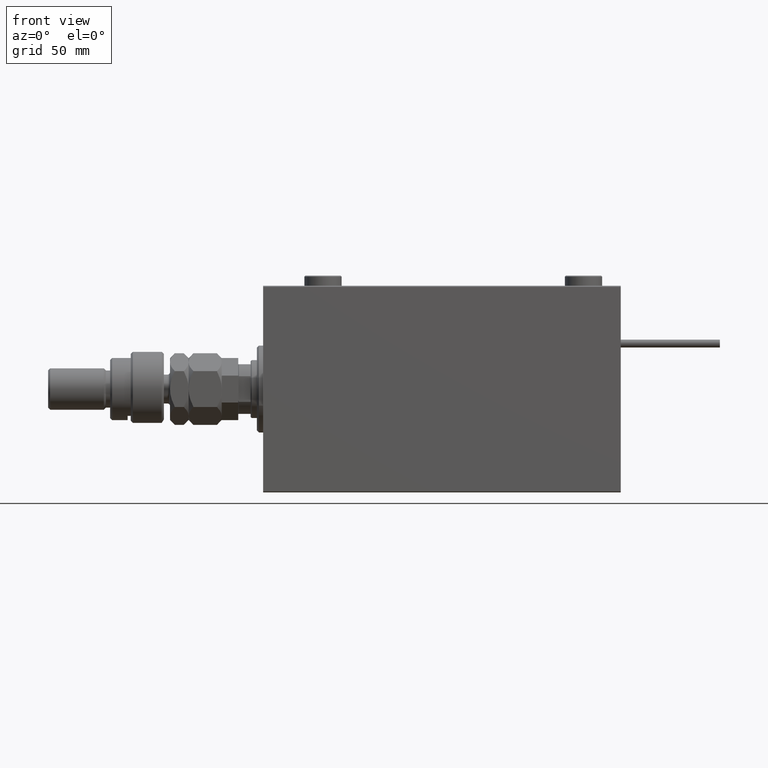
[diagram: clean part render]
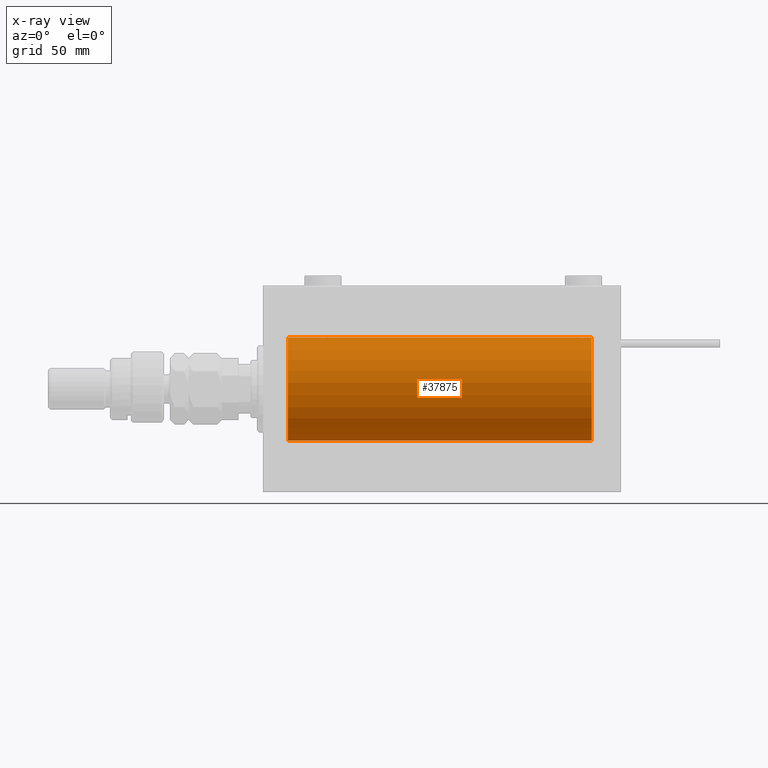
[diagram: x-ray — body ghosted, one internal face saturated and labeled with its STEP entity id]
A machine part, front view, then the same camera in x-ray: the body is ghosted and one INTERNAL B-rep face — a face not visible from any outside direction — is saturated and labeled: STEP entity #37875.
In plain terms, the highlighted cylindrical surface (partial cylindrical patch) has radius 25 mm, axis along (-1, -0, -0).
Its self-contained STEP definition (entity closure, byte-faithful):
#50 = AXIS2_PLACEMENT_3D ( 'NONE', #5085, #21875, #33746 ) ;
#202 = DIRECTION ( 'NONE',  ( -1.000000000000000000, -0.000000000000000000, -0.000000000000000000 ) ) ;
#1055 = CARTESIAN_POINT ( 'NONE',  ( 30.98538033717095530, -1.528152964861310359, 24.95362559291379156 ) ) ;
#1437 = CARTESIAN_POINT ( 'NONE',  ( 12.00000000000001066, 0.000000000000000000, 25.00000000000000000 ) ) ;
#1868 = CARTESIAN_POINT ( 'NONE',  ( 31.16827641493957302, -1.255214705003178777, 24.96884293994577675 ) ) ;
#2435 = CARTESIAN_POINT ( 'NONE',  ( 30.52536182243081342, -1.987446652080257392, -24.92104239223420592 ) ) ;
#2446 = EDGE_LOOP ( 'NONE', ( #19912, #11635, #31227, #20393, #52473, #19003, #12184, #13169, #6173, #51388, #11191, #24900 ) ) ;
#2484 = CARTESIAN_POINT ( 'NONE',  ( 26.50000000000000355, -1.044046902370982825E-15, -25.00000000000000000 ) ) ;
#2544 = CARTESIAN_POINT ( 'NONE',  ( 153.0125018416559897, -1.525407911884356205, 24.95379469572361586 ) ) ;
#2704 = CARTESIAN_POINT ( 'NONE',  ( 29.64904390169096970, -2.419770561643903584, -24.88263927071751525 ) ) ;
#2753 = CARTESIAN_POINT ( 'NONE',  ( 157.5000000000000284, 3.061616978453880738E-15, -25.00000000000000000 ) ) ;
#2819 = CARTESIAN_POINT ( 'NONE',  ( 155.8043566091630510, -2.372734907014173000, 24.88722742718433878 ) ) ;
#3100 = CARTESIAN_POINT ( 'NONE',  ( 156.6512113355911424, -1.884161199660621344, 24.92916496727982789 ) ) ;
#3202 = VERTEX_POINT ( 'NONE', #21117 ) ;
#4891 = CARTESIAN_POINT ( 'NONE',  ( 152.5000000000000568, -0.3305063766663885461, -25.00000000000001066 ) ) ;
#5085 = CARTESIAN_POINT ( 'NONE',  ( 159.0000000000000000, 0.000000000000000000, 0.000000000000000000 ) ) ;
#5242 = DIRECTION ( 'NONE',  ( -1.000000000000000000, 0.000000000000000000, 0.000000000000000000 ) ) ;
#6018 = CARTESIAN_POINT ( 'NONE',  ( 30.25084023924054932, -2.170728182476720836, 24.90574631553725027 ) ) ;
#6173 = ORIENTED_EDGE ( 'NONE', *, *, #32269, .T. ) ;
#6284 = CARTESIAN_POINT ( 'NONE',  ( 28.83293504821940445, -2.499872792855083681, 24.87469871246083031 ) ) ;
#6348 = CARTESIAN_POINT ( 'NONE',  ( 155.1670649517806453, -2.499872792855085013, -24.87469871246083031 ) ) ;
#6634 = CARTESIAN_POINT ( 'NONE',  ( 156.9874981583440956, -1.525407911884359535, -24.95379469572363007 ) ) ;
#6863 = CARTESIAN_POINT ( 'NONE',  ( 29.16706495178059910, -2.499872792855075687, -24.87469871246082320 ) ) ;
#6908 = CARTESIAN_POINT ( 'NONE',  ( 153.1181404585136079, -1.653834020452949805, -24.94550385189584674 ) ) ;
#7118 = CARTESIAN_POINT ( 'NONE',  ( 28.35439333851368104, -2.420689345803754833, -24.88254961038873248 ) ) ;
#8292 = DIRECTION ( 'NONE',  ( -1.000000000000000000, -0.000000000000000000, -0.000000000000000000 ) ) ;
#8926 = FACE_OUTER_BOUND ( 'NONE', #2446, .T. ) ;
#9179 = VECTOR ( 'NONE', #33868, 1000.000000000000000 ) ;
#9330 = CARTESIAN_POINT ( 'NONE',  ( 26.50000000000000355, -0.1631750940176212028, 25.00000000000000355 ) ) ;
#9601 = CARTESIAN_POINT ( 'NONE',  ( 28.67052319885731393, -2.483544361357271413, 24.87635491893501793 ) ) ;
#9614 = EDGE_CURVE ( 'NONE', #3202, #41430, #12097, .T. ) ;
#10004 = EDGE_CURVE ( 'NONE', #19731, #35328, #31951, .T. ) ;
#10152 = CARTESIAN_POINT ( 'NONE',  ( 26.75239748980448340, -1.106703319666886731, 24.97594585958023572 ) ) ;
#10161 = CARTESIAN_POINT ( 'NONE',  ( 26.50000000000000355, -1.044046902370982825E-15, -25.00000000000000000 ) ) ;
#10211 = CARTESIAN_POINT ( 'NONE',  ( 154.6740342996054096, -2.484007091859770089, -24.87630842367762796 ) ) ;
#10475 = CARTESIAN_POINT ( 'NONE',  ( 152.7539362090593613, -1.109818057797422375, -24.97580694515542632 ) ) ;
#10698 = CARTESIAN_POINT ( 'NONE',  ( 31.24760251019550594, -1.106703319666880736, -24.97594585958023572 ) ) ;
#10748 = CARTESIAN_POINT ( 'NONE',  ( 154.1956433908370627, -2.372734907014177885, -24.88722742718433523 ) ) ;
#10973 = CARTESIAN_POINT ( 'NONE',  ( 31.37215969408608274, -0.8058335233485440785, -24.98746277938383997 ) ) ;
#11022 = CARTESIAN_POINT ( 'NONE',  ( 153.3487886644088860, -1.884161199660627783, -24.92916496727982079 ) ) ;
#11191 = ORIENTED_EDGE ( 'NONE', *, *, #53864, .T. ) ;
#11341 = CARTESIAN_POINT ( 'NONE',  ( 152.5798509077907283, -0.6480119923854213981, 24.99212088949391131 ) ) ;
#11612 = CARTESIAN_POINT ( 'NONE',  ( 157.5000000000000284, -0.3305063766663748903, 24.99999999999999289 ) ) ;
#11635 = ORIENTED_EDGE ( 'NONE', *, *, #9614, .T. ) ;
#12097 = LINE ( 'NONE', #29471, #9179 ) ;
#12184 = ORIENTED_EDGE ( 'NONE', *, *, #33439, .T. ) ;
#12418 = CARTESIAN_POINT ( 'NONE',  ( 159.0000000000000000, 0.000000000000000000, 25.00000000000000000 ) ) ;
#12684 = CARTESIAN_POINT ( 'NONE',  ( 159.0000000000000000, 0.000000000000000000, 25.00000000000000000 ) ) ;
#13059 = VERTEX_POINT ( 'NONE', #50406 ) ;
#13060 = CYLINDRICAL_SURFACE ( 'NONE', #50, 25.00000000000000000 ) ;
#13169 = ORIENTED_EDGE ( 'NONE', *, *, #51066, .F. ) ;
#13733 = CARTESIAN_POINT ( 'NONE',  ( 27.74616804575498463, -2.169003991399872433, 24.90589728951139392 ) ) ;
#14007 = CARTESIAN_POINT ( 'NONE',  ( 30.10723845838410639, -2.247417070759895719, 24.89885693081946272 ) ) ;
#14277 = CARTESIAN_POINT ( 'NONE',  ( 152.5000000000000284, -1.941505016884693205E-23, 25.00000000000000000 ) ) ;
#14281 = EDGE_CURVE ( 'NONE', #52041, #19731, #37942, .T. ) ;
#14291 = CARTESIAN_POINT ( 'NONE',  ( 27.01461966282905891, -1.528152964861305696, -24.95362559291378801 ) ) ;
#14323 = CARTESIAN_POINT ( 'NONE',  ( 26.50000000000000355, -1.940558383798427991E-23, 25.00000000000000000 ) ) ;
#14341 = CARTESIAN_POINT ( 'NONE',  ( 156.8841238278647268, -1.651251241585108165, -24.94567559498349141 ) ) ;
#14522 = CARTESIAN_POINT ( 'NONE',  ( 159.0000000000000000, 3.061616997868382254E-15, -25.00000000000000000 ) ) ;
#14612 = CARTESIAN_POINT ( 'NONE',  ( 153.0146196628290909, -1.528152964861322793, -24.95362559291379156 ) ) ;
#14675 = CARTESIAN_POINT ( 'NONE',  ( 157.4334935523974650, -0.6588655613945811895, 24.99312727339969697 ) ) ;
#14833 = CARTESIAN_POINT ( 'NONE',  ( 31.49999999999998579, -0.1631750940176181774, -25.00000000000000355 ) ) ;
#15158 = CARTESIAN_POINT ( 'NONE',  ( 153.7491597607594827, -2.170728182476731938, -24.90574631553725027 ) ) ;
#15220 = CARTESIAN_POINT ( 'NONE',  ( 155.3259657003945904, -2.484007091859763872, 24.87630842367762796 ) ) ;
#15450 = CARTESIAN_POINT ( 'NONE',  ( 159.0000000000000000, 0.000000000000000000, 25.00000000000000000 ) ) ;
#15493 = CARTESIAN_POINT ( 'NONE',  ( 153.3461666385066451, -1.881857718844717642, 24.92933960374833546 ) ) ;
#15756 = CARTESIAN_POINT ( 'NONE',  ( 152.5158215994234183, -0.3254210271412208977, 24.99840249400844527 ) ) ;
#17279 = VECTOR ( 'NONE', #202, 1000.000000000000000 ) ;
#17819 = CARTESIAN_POINT ( 'NONE',  ( 157.5000000000000284, 3.061616978453880738E-15, -25.00000000000000000 ) ) ;
#18415 = CARTESIAN_POINT ( 'NONE',  ( 26.82988709719076681, -1.252049606094339351, 24.96900299967627390 ) ) ;
#18694 = CARTESIAN_POINT ( 'NONE',  ( 26.50000000000000000, -0.3305063766663753899, -24.99999999999999645 ) ) ;
#18745 = CARTESIAN_POINT ( 'NONE',  ( 157.1701129028093362, -1.252049606094329581, -24.96900299967627745 ) ) ;
#18955 = CARTESIAN_POINT ( 'NONE',  ( 27.11587617213528745, -1.651251241585106166, 24.94567559498348430 ) ) ;
#19003 = ORIENTED_EDGE ( 'NONE', *, *, #43358, .T. ) ;
#19237 = CARTESIAN_POINT ( 'NONE',  ( 30.25383195424502603, -2.169003991399864439, -24.90589728951138326 ) ) ;
#19348 = CARTESIAN_POINT ( 'NONE',  ( 153.1158761721353585, -1.651251241585103724, 24.94567559498349141 ) ) ;
#19619 = CARTESIAN_POINT ( 'NONE',  ( 156.2508402392405458, -2.170728182476725276, 24.90574631553724672 ) ) ;
#19731 = VERTEX_POINT ( 'NONE', #27819 ) ;
#19912 = ORIENTED_EDGE ( 'NONE', *, *, #20061, .F. ) ;
#20061 = EDGE_CURVE ( 'NONE', #3202, #13059, #29459, .T. ) ;
#20072 = CARTESIAN_POINT ( 'NONE',  ( 12.00000000000001066, 3.061616997868382254E-15, -25.00000000000000000 ) ) ;
#20393 = ORIENTED_EDGE ( 'NONE', *, *, #14281, .T. ) ;
#21117 = CARTESIAN_POINT ( 'NONE',  ( 159.0000000000000000, 3.061616997868382254E-15, -25.00000000000000000 ) ) ;
#21875 = DIRECTION ( 'NONE',  ( -1.000000000000000000, -0.000000000000000000, -0.000000000000000000 ) ) ;
#22280 = CARTESIAN_POINT ( 'NONE',  ( 31.43349355239748277, -0.6588655613945849643, 24.99312727339970053 ) ) ;
#22553 = CARTESIAN_POINT ( 'NONE',  ( 29.32596570039460104, -2.484007091859765204, 24.87630842367763506 ) ) ;
#22873 = CARTESIAN_POINT ( 'NONE',  ( 156.5253618224308241, -1.987446652080262943, -24.92104239223420592 ) ) ;
#23086 = CARTESIAN_POINT ( 'NONE',  ( 30.52256774340189338, -1.989585286700246813, 24.92087098724766037 ) ) ;
#23121 = CARTESIAN_POINT ( 'NONE',  ( 12.00000000000001066, 0.000000000000000000, 0.000000000000000000 ) ) ;
#23375 = CARTESIAN_POINT ( 'NONE',  ( 31.17011290280924385, -1.252049606094333800, -24.96900299967627390 ) ) ;
#23424 = CARTESIAN_POINT ( 'NONE',  ( 155.6490439016910443, -2.419770561643905804, -24.88263927071751525 ) ) ;
#23489 = CARTESIAN_POINT ( 'NONE',  ( 152.5000000000000853, -0.1631750940176186493, 25.00000000000001066 ) ) ;
#23651 = CARTESIAN_POINT ( 'NONE',  ( 28.19564339083698457, -2.372734907014167227, -24.88722742718433878 ) ) ;
#23917 = CARTESIAN_POINT ( 'NONE',  ( 27.47743225659811017, -1.989585286700239486, -24.92087098724765326 ) ) ;
#24900 = ORIENTED_EDGE ( 'NONE', *, *, #34643, .F. ) ;
#26138 = CARTESIAN_POINT ( 'NONE',  ( 29.80435660916302609, -2.372734907014173888, 24.88722742718433878 ) ) ;
#26401 = CARTESIAN_POINT ( 'NONE',  ( 27.01250184165601809, -1.525407911884366863, 24.95379469572362297 ) ) ;
#26953 = CARTESIAN_POINT ( 'NONE',  ( 29.64560666148631896, -2.420689345803760606, 24.88254961038873958 ) ) ;
#26965 = CARTESIAN_POINT ( 'NONE',  ( 30.11036796508863844, -2.245863995402894719, -24.89899750494197406 ) ) ;
#27016 = CARTESIAN_POINT ( 'NONE',  ( 154.3543933385137166, -2.420689345803768155, -24.88254961038873603 ) ) ;
#27222 = CARTESIAN_POINT ( 'NONE',  ( 27.34616663850663443, -1.881857718844720528, 24.92933960374834967 ) ) ;
#27287 = CARTESIAN_POINT ( 'NONE',  ( 157.5000000000000284, -0.1631750940176158182, -25.00000000000000000 ) ) ;
#27510 = CARTESIAN_POINT ( 'NONE',  ( 31.50000000000000000, 3.061616978460586055E-15, -25.00000000000000000 ) ) ;
#27534 = CARTESIAN_POINT ( 'NONE',  ( 157.5000000000000284, 1.404322005998729010E-15, 25.00000000000000000 ) ) ;
#27562 = CARTESIAN_POINT ( 'NONE',  ( 155.8078834240581614, -2.371528299825743868, -24.88734287464371420 ) ) ;
#27787 = CARTESIAN_POINT ( 'NONE',  ( 29.32947680114268962, -2.483544361357263863, -24.87635491893501083 ) ) ;
#27819 = CARTESIAN_POINT ( 'NONE',  ( 31.50000000000000000, 3.061616978460586055E-15, -25.00000000000000000 ) ) ;
#27901 = CARTESIAN_POINT ( 'NONE',  ( 155.6456066614863403, -2.420689345803761938, 24.88254961038872892 ) ) ;
#28060 = CARTESIAN_POINT ( 'NONE',  ( 28.83676410361456988, -2.500125740978188738, -24.87467329022545570 ) ) ;
#28165 = CARTESIAN_POINT ( 'NONE',  ( 153.7461680457550415, -2.169003991399866216, 24.90589728951138682 ) ) ;
#28366 = VECTOR ( 'NONE', #8292, 1000.000000000000000 ) ;
#28442 = CARTESIAN_POINT ( 'NONE',  ( 157.5000000000000284, 1.404322005998729010E-15, 25.00000000000000000 ) ) ;
#28570 = CARTESIAN_POINT ( 'NONE',  ( 159.0000000000000000, 0.000000000000000000, 0.000000000000000000 ) ) ;
#29459 = CIRCLE ( 'NONE', #36447, 25.00000000000000000 ) ;
#29471 = CARTESIAN_POINT ( 'NONE',  ( 159.0000000000000000, 3.061616997868382254E-15, -25.00000000000000000 ) ) ;
#29954 = CARTESIAN_POINT ( 'NONE',  ( 159.0000000000000000, 3.061616997868382254E-15, -25.00000000000000000 ) ) ;
#30279 = CARTESIAN_POINT ( 'NONE',  ( 29.16323589638543723, -2.500125740978196731, 24.87467329022545570 ) ) ;
#30559 = CARTESIAN_POINT ( 'NONE',  ( 31.24606379094067776, -1.109818057797414381, 24.97580694515543343 ) ) ;
#30820 = CARTESIAN_POINT ( 'NONE',  ( 26.57985090779071058, -0.6480119923854229524, 24.99212088949391131 ) ) ;
#31094 = CARTESIAN_POINT ( 'NONE',  ( 26.50000000000000355, -1.940558383798427991E-23, 25.00000000000000000 ) ) ;
#31106 = CARTESIAN_POINT ( 'NONE',  ( 26.83172358506043409, -1.255214705003176112, -24.96884293994578385 ) ) ;
#31127 = DIRECTION ( 'NONE',  ( 0.000000000000000000, 0.000000000000000000, 1.000000000000000000 ) ) ;
#31152 = CARTESIAN_POINT ( 'NONE',  ( 157.4201490922093001, -0.6480119923854171793, -24.99212088949391131 ) ) ;
#31227 = ORIENTED_EDGE ( 'NONE', *, *, #35356, .T. ) ;
#31311 = B_SPLINE_CURVE_WITH_KNOTS ( 'NONE', 3,
 ( #36427, #23489, #15756, #11341, #31751, #48541, #40289, #2544, #19348, #15493, #36151, #28165, #48825, #52430, #40555, #32566, #52976, #44965, #15220, #27901, #2819, #44699, #19619, #36706, #3100, #31485, #32307, #49362, #49098, #14675, #11612, #28442 ),
 .UNSPECIFIED., .F., .F.,
 ( 4, 2, 2, 2, 2, 2, 2, 2, 2, 2, 2, 2, 2, 2, 2, 4 ),
 ( 0.007821024441662296350, 0.008309723826317906223, 0.008798423210973516095, 0.009287122595629124233, 0.009775821980284732371, 0.01026452136494034224, 0.01075322074959595212, 0.01124192013425156025, 0.01173061951890716839, 0.01221931890356277826, 0.01270801828821838814, 0.01319671767287399627, 0.01368541705752960788, 0.01417411644218521602, 0.01466281582684082589, 0.01564021459615201268 ),
 .UNSPECIFIED. ) ;
#31430 = CARTESIAN_POINT ( 'NONE',  ( 156.1103679650886704, -2.245863995402892943, -24.89899750494197406 ) ) ;
#31485 = CARTESIAN_POINT ( 'NONE',  ( 156.8818595414864490, -1.653834020452942477, 24.94550385189585029 ) ) ;
#31751 = CARTESIAN_POINT ( 'NONE',  ( 152.6278403059139919, -0.8058335233485443005, 24.98746277938383287 ) ) ;
#31951 = B_SPLINE_CURVE_WITH_KNOTS ( 'NONE', 3,
 ( #27510, #14833, #35236, #32193, #10973, #10698, #23375, #40182, #48987, #44592, #2435, #19237, #26965, #36043, #2704, #27787, #6863, #28060, #44857, #7118, #23651, #40450, #36320, #23917, #35507, #52042, #14291, #31106, #52323, #47892, #18694, #10161 ),
 .UNSPECIFIED., .F., .F.,
 ( 4, 2, 2, 2, 2, 2, 2, 2, 2, 2, 2, 2, 2, 2, 2, 4 ),
 ( 0.007821024441662306759, 0.008309723826317914896, 0.008798423210973524769, 0.009287122595629129437, 0.009775821980284734106, 0.01026452136494033877, 0.01075322074959594344, 0.01124192013425154985, 0.01173061951890715451, 0.01221931890356275918, 0.01270801828821836385, 0.01319671767287396852, 0.01368541705752957492, 0.01417411644218518132, 0.01466281582684078599, 0.01564021459615200227 ),
 .UNSPECIFIED. ) ;
#31955 = CARTESIAN_POINT ( 'NONE',  ( 152.5000000000000284, -1.405387377138226638E-14, -25.00000000000000000 ) ) ;
#32193 = CARTESIAN_POINT ( 'NONE',  ( 31.42014909220928942, -0.6480119923854199548, -24.99212088949390775 ) ) ;
#32269 = EDGE_CURVE ( 'NONE', #53341, #41819, #32740, .T. ) ;
#32283 = VERTEX_POINT ( 'NONE', #14277 ) ;
#32307 = CARTESIAN_POINT ( 'NONE',  ( 156.9853803371709660, -1.528152964861297258, 24.95362559291378446 ) ) ;
#32566 = CARTESIAN_POINT ( 'NONE',  ( 154.6705231988573246, -2.483544361357268304, 24.87635491893501793 ) ) ;
#32740 = B_SPLINE_CURVE_WITH_KNOTS ( 'NONE', 3,
 ( #31094, #9330, #35764, #30820, #52030, #10152, #18415, #26401, #18955, #27222, #35492, #13733, #47879, #44024, #52582, #9601, #6284, #30279, #22553, #26953, #26138, #14007, #6018, #23086, #42939, #43208, #1055, #1868, #30559, #22280, #47067, #43493 ),
 .UNSPECIFIED., .F., .F.,
 ( 4, 2, 2, 2, 2, 2, 2, 2, 2, 2, 2, 2, 2, 2, 2, 4 ),
 ( 0.007821024441662294616, 0.008309723826317901019, 0.008798423210973509156, 0.009287122595629115560, 0.009775821980284721963, 0.01026452136494032837, 0.01075322074959593477, 0.01124192013425154291, 0.01173061951890714757, 0.01221931890356275571, 0.01270801828821836212, 0.01319671767287396852, 0.01368541705752957666, 0.01417411644218518479, 0.01466281582684079120, 0.01564021459615200574 ),
 .UNSPECIFIED. ) ;
#33439 = EDGE_CURVE ( 'NONE', #33490, #52804, #52700, .T. ) ;
#33490 = VERTEX_POINT ( 'NONE', #20072 ) ;
#33579 = VERTEX_POINT ( 'NONE', #27534 ) ;
#33746 = DIRECTION ( 'NONE',  ( 0.000000000000000000, 0.000000000000000000, 1.000000000000000000 ) ) ;
#33868 = DIRECTION ( 'NONE',  ( -1.000000000000000000, -0.000000000000000000, -0.000000000000000000 ) ) ;
#34643 = EDGE_CURVE ( 'NONE', #13059, #33579, #50172, .T. ) ;
#34930 = LINE ( 'NONE', #14522, #36390 ) ;
#35236 = CARTESIAN_POINT ( 'NONE',  ( 31.48417840057656747, -0.3254210271412201205, -24.99840249400844527 ) ) ;
#35328 = VERTEX_POINT ( 'NONE', #2484 ) ;
#35356 = EDGE_CURVE ( 'NONE', #41430, #52041, #48331, .T. ) ;
#35492 = CARTESIAN_POINT ( 'NONE',  ( 27.47463817756919724, -1.987446652080264275, 24.92104239223420592 ) ) ;
#35507 = CARTESIAN_POINT ( 'NONE',  ( 27.34878866440888245, -1.884161199660611574, -24.92916496727982079 ) ) ;
#35764 = CARTESIAN_POINT ( 'NONE',  ( 26.51582159942343253, -0.3254210271412225075, 24.99840249400844527 ) ) ;
#36043 = CARTESIAN_POINT ( 'NONE',  ( 29.80788342405805480, -2.371528299825740760, -24.88734287464370709 ) ) ;
#36092 = CARTESIAN_POINT ( 'NONE',  ( 155.3294768011427891, -2.483544361357270969, -24.87635491893502149 ) ) ;
#36151 = CARTESIAN_POINT ( 'NONE',  ( 153.4746381775692328, -1.987446652080256948, 24.92104239223420592 ) ) ;
#36320 = CARTESIAN_POINT ( 'NONE',  ( 27.74915976075944712, -2.170728182476712842, -24.90574631553725027 ) ) ;
#36390 = VECTOR ( 'NONE', #43181, 1000.000000000000000 ) ;
#36427 = CARTESIAN_POINT ( 'NONE',  ( 152.5000000000000284, -1.941505016884693205E-23, 25.00000000000000000 ) ) ;
#36447 = AXIS2_PLACEMENT_3D ( 'NONE', #28570, #45361, #45091 ) ;
#36659 = DIRECTION ( 'NONE',  ( -1.000000000000000000, -0.000000000000000000, -0.000000000000000000 ) ) ;
#36706 = CARTESIAN_POINT ( 'NONE',  ( 156.5225677434019076, -1.989585286700252809, 24.92087098724766747 ) ) ;
#37875 = ADVANCED_FACE ( 'NONE', ( #8926 ), #13060, .F. ) ;
#37942 = LINE ( 'NONE', #29954, #17279 ) ;
#39574 = CARTESIAN_POINT ( 'NONE',  ( 152.5000000000000284, -1.405387377138226638E-14, -25.00000000000000000 ) ) ;
#39703 = CARTESIAN_POINT ( 'NONE',  ( 31.50000000000000000, -4.224067783497237755E-16, 25.00000000000000000 ) ) ;
#39958 = CARTESIAN_POINT ( 'NONE',  ( 157.2476025101955202, -1.106703319666879848, -24.97594585958023572 ) ) ;
#40182 = CARTESIAN_POINT ( 'NONE',  ( 30.98749815834398547, -1.525407911884360868, -24.95379469572361941 ) ) ;
#40232 = CARTESIAN_POINT ( 'NONE',  ( 153.8927615416158687, -2.247417070759900604, -24.89885693081946627 ) ) ;
#40289 = CARTESIAN_POINT ( 'NONE',  ( 152.8298870971907775, -1.252049606094326695, 24.96900299967627390 ) ) ;
#40450 = CARTESIAN_POINT ( 'NONE',  ( 27.89276154161589716, -2.247417070759890390, -24.89885693081946982 ) ) ;
#40555 = CARTESIAN_POINT ( 'NONE',  ( 154.3509560983090978, -2.419770561643906248, 24.88263927071751169 ) ) ;
#41430 = VERTEX_POINT ( 'NONE', #17819 ) ;
#41819 = VERTEX_POINT ( 'NONE', #39703 ) ;
#42939 = CARTESIAN_POINT ( 'NONE',  ( 30.65121133559112820, -1.884161199660616459, 24.92916496727982434 ) ) ;
#43181 = DIRECTION ( 'NONE',  ( -1.000000000000000000, -0.000000000000000000, -0.000000000000000000 ) ) ;
#43208 = CARTESIAN_POINT ( 'NONE',  ( 30.88185954148647028, -1.653834020452937592, 24.94550385189585029 ) ) ;
#43358 = EDGE_CURVE ( 'NONE', #35328, #33490, #34930, .T. ) ;
#43493 = CARTESIAN_POINT ( 'NONE',  ( 31.50000000000000000, -4.224067783497237755E-16, 25.00000000000000000 ) ) ;
#43907 = EDGE_CURVE ( 'NONE', #32283, #41819, #53214, .T. ) ;
#44024 = CARTESIAN_POINT ( 'NONE',  ( 28.19211657594193809, -2.371528299825748753, 24.88734287464370709 ) ) ;
#44083 = CARTESIAN_POINT ( 'NONE',  ( 152.5665064476025350, -0.6588655613945925138, -24.99312727339970408 ) ) ;
#44368 = CARTESIAN_POINT ( 'NONE',  ( 157.4841784005766101, -0.3254210271412171229, -24.99840249400844527 ) ) ;
#44592 = CARTESIAN_POINT ( 'NONE',  ( 30.65383336149337623, -1.881857718844712979, -24.92933960374833902 ) ) ;
#44641 = CARTESIAN_POINT ( 'NONE',  ( 152.8317235850604732, -1.255214705003193432, -24.96884293994577675 ) ) ;
#44699 = CARTESIAN_POINT ( 'NONE',  ( 156.1072384583841028, -2.247417070759893942, 24.89885693081946627 ) ) ;
#44857 = CARTESIAN_POINT ( 'NONE',  ( 28.67403429960540251, -2.484007091859758098, -24.87630842367763151 ) ) ;
#44965 = CARTESIAN_POINT ( 'NONE',  ( 155.1632358963854585, -2.500125740978193178, 24.87467329022544504 ) ) ;
#45091 = DIRECTION ( 'NONE',  ( 0.000000000000000000, 0.000000000000000000, 1.000000000000000000 ) ) ;
#45361 = DIRECTION ( 'NONE',  ( -1.000000000000000000, 0.000000000000000000, 0.000000000000000000 ) ) ;
#45643 = AXIS2_PLACEMENT_3D ( 'NONE', #23121, #5242, #31127 ) ;
#46022 = LINE ( 'NONE', #12684, #28366 ) ;
#46037 = DIRECTION ( 'NONE',  ( -1.000000000000000000, -0.000000000000000000, -0.000000000000000000 ) ) ;
#47067 = CARTESIAN_POINT ( 'NONE',  ( 31.50000000000000000, -0.3305063766663733360, 25.00000000000000000 ) ) ;
#47879 = CARTESIAN_POINT ( 'NONE',  ( 27.88963203491136511, -2.245863995402902269, 24.89899750494197761 ) ) ;
#47892 = CARTESIAN_POINT ( 'NONE',  ( 26.56650644760252789, -0.6588655613945865186, -24.99312727339970053 ) ) ;
#47939 = CARTESIAN_POINT ( 'NONE',  ( 156.6538333614934402, -1.881857718844723415, -24.92933960374834257 ) ) ;
#48331 = B_SPLINE_CURVE_WITH_KNOTS ( 'NONE', 3,
 ( #2753, #27287, #44368, #31152, #52094, #39958, #18745, #6634, #14341, #47939, #22873, #52371, #31430, #27562, #23424, #36092, #6348, #48483, #10211, #27016, #10748, #40232, #15158, #48764, #11022, #6908, #14612, #44641, #10475, #44083, #4891, #39574 ),
 .UNSPECIFIED., .F., .F.,
 ( 4, 2, 2, 2, 2, 2, 2, 2, 2, 2, 2, 2, 2, 2, 2, 4 ),
 ( 0.007821024441662285942, 0.008309723826317894080, 0.008798423210973503952, 0.009287122595629112090, 0.009775821980284720228, 0.01026452136494033010, 0.01075322074959593824, 0.01124192013425154638, 0.01173061951890715451, 0.01221931890356276265, 0.01270801828821837426, 0.01319671767287398240, 0.01368541705752959053, 0.01417411644218519867, 0.01466281582684080681, 0.01564021459615199186 ),
 .UNSPECIFIED. ) ;
#48483 = CARTESIAN_POINT ( 'NONE',  ( 154.8367641036145415, -2.500125740978199840, -24.87467329022544504 ) ) ;
#48541 = CARTESIAN_POINT ( 'NONE',  ( 152.7523974898044798, -1.106703319666880958, 24.97594585958023217 ) ) ;
#48764 = CARTESIAN_POINT ( 'NONE',  ( 153.4774322565980924, -1.989585286700259248, -24.92087098724765681 ) ) ;
#48825 = CARTESIAN_POINT ( 'NONE',  ( 153.8896320349114148, -2.245863995402900049, 24.89899750494197050 ) ) ;
#48987 = CARTESIAN_POINT ( 'NONE',  ( 30.88412382786472321, -1.651251241585099061, -24.94567559498349496 ) ) ;
#49098 = CARTESIAN_POINT ( 'NONE',  ( 157.2460637909406955, -1.109818057797409718, 24.97580694515542632 ) ) ;
#49257 = VECTOR ( 'NONE', #46037, 1000.000000000000000 ) ;
#49362 = CARTESIAN_POINT ( 'NONE',  ( 157.1682764149396121, -1.255214705003166564, 24.96884293994578385 ) ) ;
#50172 = LINE ( 'NONE', #12418, #49257 ) ;
#50406 = CARTESIAN_POINT ( 'NONE',  ( 159.0000000000000000, 0.000000000000000000, 25.00000000000000000 ) ) ;
#51066 = EDGE_CURVE ( 'NONE', #53341, #52804, #46022, .T. ) ;
#51388 = ORIENTED_EDGE ( 'NONE', *, *, #43907, .F. ) ;
#52030 = CARTESIAN_POINT ( 'NONE',  ( 26.62784030591392792, -0.8058335233485491855, 24.98746277938382576 ) ) ;
#52041 = VERTEX_POINT ( 'NONE', #31955 ) ;
#52042 = CARTESIAN_POINT ( 'NONE',  ( 27.11814045851354749, -1.653834020452933373, -24.94550385189585739 ) ) ;
#52094 = CARTESIAN_POINT ( 'NONE',  ( 157.3721596940860081, -0.8058335233485425242, -24.98746277938382221 ) ) ;
#52214 = VECTOR ( 'NONE', #36659, 1000.000000000000000 ) ;
#52323 = CARTESIAN_POINT ( 'NONE',  ( 26.75393620905932934, -1.109818057797413493, -24.97580694515541921 ) ) ;
#52371 = CARTESIAN_POINT ( 'NONE',  ( 156.2538319542450154, -2.169003991399872433, -24.90589728951138326 ) ) ;
#52430 = CARTESIAN_POINT ( 'NONE',  ( 154.1921165759419807, -2.371528299825747421, 24.88734287464370709 ) ) ;
#52473 = ORIENTED_EDGE ( 'NONE', *, *, #10004, .T. ) ;
#52582 = CARTESIAN_POINT ( 'NONE',  ( 28.35095609830903740, -2.419770561643910689, 24.88263927071751169 ) ) ;
#52700 = CIRCLE ( 'NONE', #45643, 25.00000000000000000 ) ;
#52804 = VERTEX_POINT ( 'NONE', #1437 ) ;
#52976 = CARTESIAN_POINT ( 'NONE',  ( 154.8329350482194116, -2.499872792855079240, 24.87469871246083031 ) ) ;
#53214 = LINE ( 'NONE', #15450, #52214 ) ;
#53341 = VERTEX_POINT ( 'NONE', #14323 ) ;
#53864 = EDGE_CURVE ( 'NONE', #32283, #33579, #31311, .T. ) ;